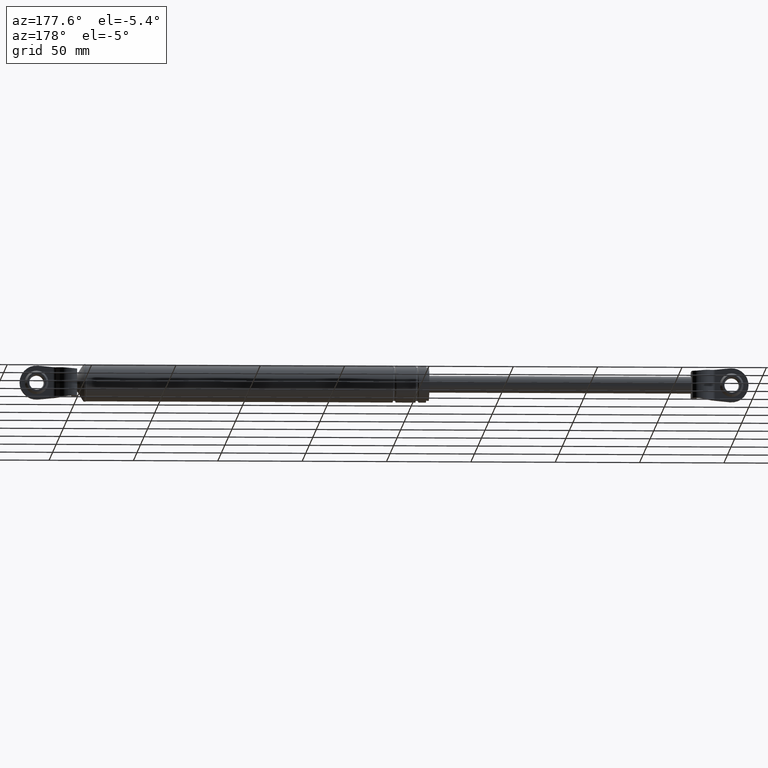
[diagram: clean part render]
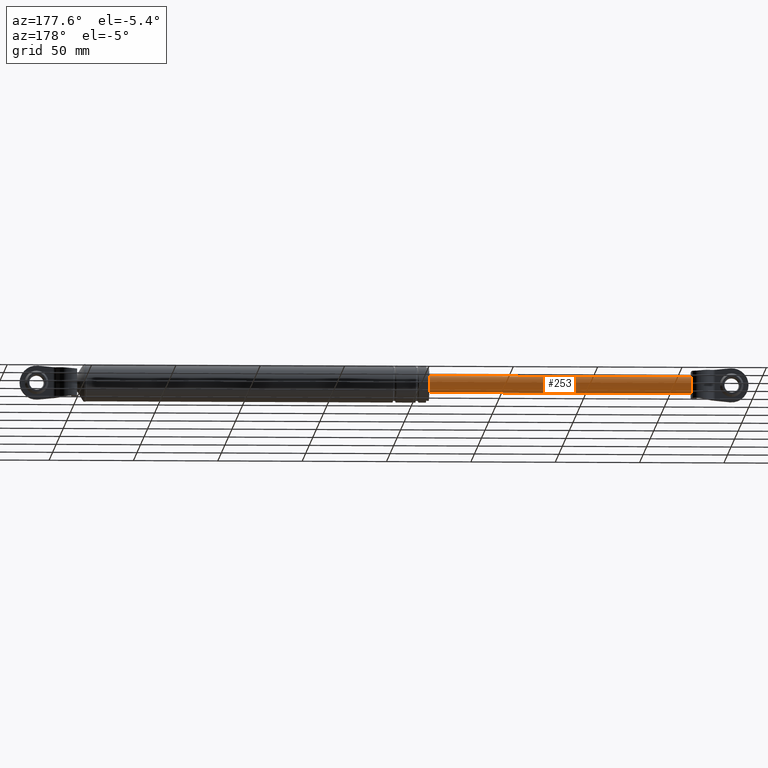
[diagram: same view with one face highlighted and labeled with its STEP entity id]
A machine part, auxiliary view. The second image highlights one B-rep face of the part: STEP entity #253.
In plain terms, the highlighted cylindrical surface (edge-blend (fillet) strip) has radius 5 mm, axis along (1, 0, 0).
Its self-contained STEP definition (entity closure, byte-faithful):
#253=ADVANCED_FACE('',(#1689),#1688,.T.);
#1688=CYLINDRICAL_SURFACE('',#2725,5.00000000000E+000);
#1689=FACE_OUTER_BOUND('',#2726,.T.);
#2722=CARTESIAN_POINT('',(0.00000000000E+000,0.00000000000E+000,1.88977754832E+002));
#2723=DIRECTION('',(1.00000000000E+000,-0.00000000000E+000,-0.00000000000E+000));
#2724=DIRECTION('',(-0.00000000000E+000,-0.00000000000E+000,-1.00000000000E+000));
#2725=AXIS2_PLACEMENT_3D('',#2722,#2723,#2724);
#2726=EDGE_LOOP('',(#3480,#3481,#3482,#3483,#3484,#3485));
#3480=ORIENTED_EDGE('',*,*,#3772,.T.);
#3481=ORIENTED_EDGE('',*,*,#3902,.F.);
#3482=ORIENTED_EDGE('',*,*,#3793,.F.);
#3483=ORIENTED_EDGE('',*,*,#3790,.F.);
#3484=ORIENTED_EDGE('',*,*,#3795,.F.);
#3485=ORIENTED_EDGE('',*,*,#3903,.T.);
#3772=EDGE_CURVE('',#5414,#5413,#5421,.T.);
#3790=EDGE_CURVE('',#5537,#5538,#5545,.T.);
#3793=EDGE_CURVE('',#5538,#5564,#5565,.T.);
#3795=EDGE_CURVE('',#5571,#5537,#5578,.T.);
#3902=EDGE_CURVE('',#5564,#5413,#6280,.T.);
#3903=EDGE_CURVE('',#5571,#5414,#6286,.T.);
#5413=VERTEX_POINT('',#7356);
#5414=VERTEX_POINT('',#7357);
#5421=CIRCLE('',#7365,5.00000000000E+000);
#5537=VERTEX_POINT('',#7435);
#5538=VERTEX_POINT('',#7436);
#5545=CIRCLE('',#7443,5.00000000000E+000);
#5564=VERTEX_POINT('',#7451);
#5565=CIRCLE('',#7455,5.00000000000E+000);
#5571=VERTEX_POINT('',#7456);
#5578=CIRCLE('',#7464,5.00000000000E+000);
#6280=(BOUNDED_CURVE() B_SPLINE_CURVE(1,(#7918,#7919),.UNSPECIFIED.,.F.,.F.) B_SPLINE_CURVE_WITH_KNOTS((2,2),(5.69800568743E-002,9.43019942891E-001),.UNSPECIFIED.) CURVE() GEOMETRIC_REPRESENTATION_ITEM() RATIONAL_B_SPLINE_CURVE((1.00000000000E+000,1.00000000000E+000)) REPRESENTATION_ITEM('') );
#6286=(BOUNDED_CURVE() B_SPLINE_CURVE(1,(#7920,#7921),.UNSPECIFIED.,.F.,.F.) B_SPLINE_CURVE_WITH_KNOTS((2,2),(5.69800569801E-002,9.43019943020E-001),.UNSPECIFIED.) CURVE() GEOMETRIC_REPRESENTATION_ITEM() RATIONAL_B_SPLINE_CURVE((7.50000000000E-001,7.50000000000E-001)) REPRESENTATION_ITEM('') );
#7356=CARTESIAN_POINT('',(1.87560362798E+002,2.96059473233E-016,1.83977754832E+002));
#7357=CARTESIAN_POINT('',(1.87560362798E+002,0.00000000000E+000,1.93977754832E+002));
#7362=CARTESIAN_POINT('',(1.87560362798E+002,0.00000000000E+000,1.88977754832E+002));
#7363=DIRECTION('',(-1.00000000000E+000,0.00000000000E+000,0.00000000000E+000));
#7364=DIRECTION('',(0.00000000000E+000,-1.22460635382E-016,1.00000000000E+000));
#7365=AXIS2_PLACEMENT_3D('',#7362,#7363,#7364);
#7435=CARTESIAN_POINT('',(3.20603627980E+001,3.40000000000E+000,1.92643815388E+002));
#7436=CARTESIAN_POINT('',(3.20603627980E+001,3.40000000000E+000,1.85311694276E+002));
#7440=CARTESIAN_POINT('',(3.20603627980E+001,0.00000000000E+000,1.88977754832E+002));
#7441=DIRECTION('',(-1.00000000000E+000,0.00000000000E+000,0.00000000000E+000));
#7442=DIRECTION('',(-0.00000000000E+000,-0.00000000000E+000,-1.00000000000E+000));
#7443=AXIS2_PLACEMENT_3D('',#7440,#7441,#7442);
#7451=CARTESIAN_POINT('',(3.20603627980E+001,-4.88676433667E-013,1.83977754832E+002));
#7452=CARTESIAN_POINT('',(3.20603627980E+001,0.00000000000E+000,1.88977754832E+002));
#7453=DIRECTION('',(-1.00000000000E+000,0.00000000000E+000,0.00000000000E+000));
#7454=DIRECTION('',(-0.00000000000E+000,6.80000000000E-001,-7.33212111193E-001));
#7455=AXIS2_PLACEMENT_3D('',#7452,#7453,#7454);
#7456=CARTESIAN_POINT('',(3.20603627980E+001,-7.04600016240E-004,1.93977754782E+002));
#7461=CARTESIAN_POINT('',(3.20603627980E+001,0.00000000000E+000,1.88977754832E+002));
#7462=DIRECTION('',(-1.00000000000E+000,0.00000000000E+000,0.00000000000E+000));
#7463=DIRECTION('',(-0.00000000000E+000,6.80000000000E-001,-7.33212111193E-001));
#7464=AXIS2_PLACEMENT_3D('',#7461,#7462,#7463);
#7918=CARTESIAN_POINT('',(3.20603627795E+001,0.00000000000E+000,1.83977754832E+002));
#7919=CARTESIAN_POINT('',(1.87560362775E+002,0.00000000000E+000,1.83977754832E+002));
#7920=CARTESIAN_POINT('',(3.20603627980E+001,-2.96059473233E-016,1.93977754832E+002));
#7921=CARTESIAN_POINT('',(1.87560362798E+002,-2.96059473233E-016,1.93977754832E+002));